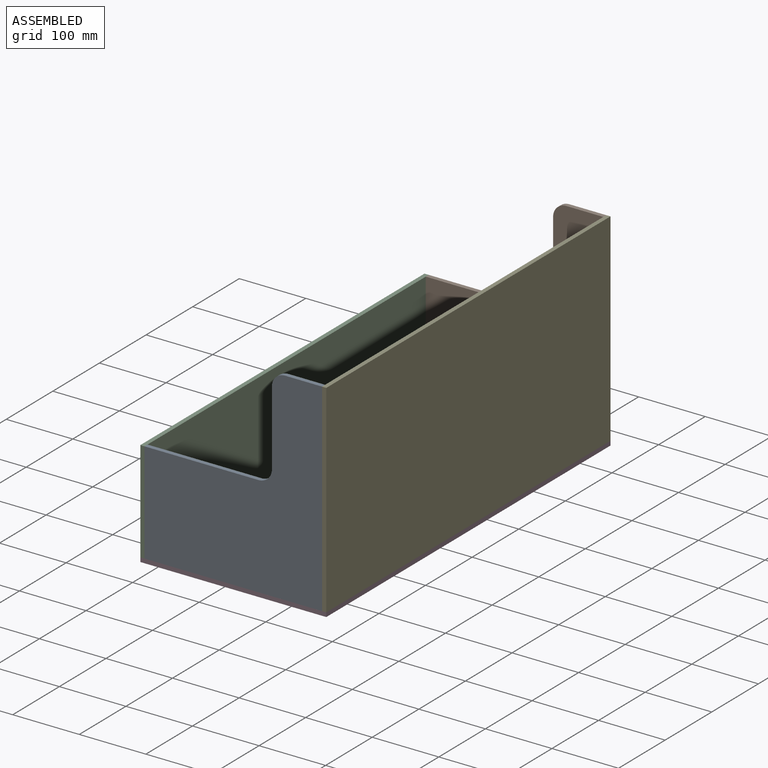
[diagram: assembled view]
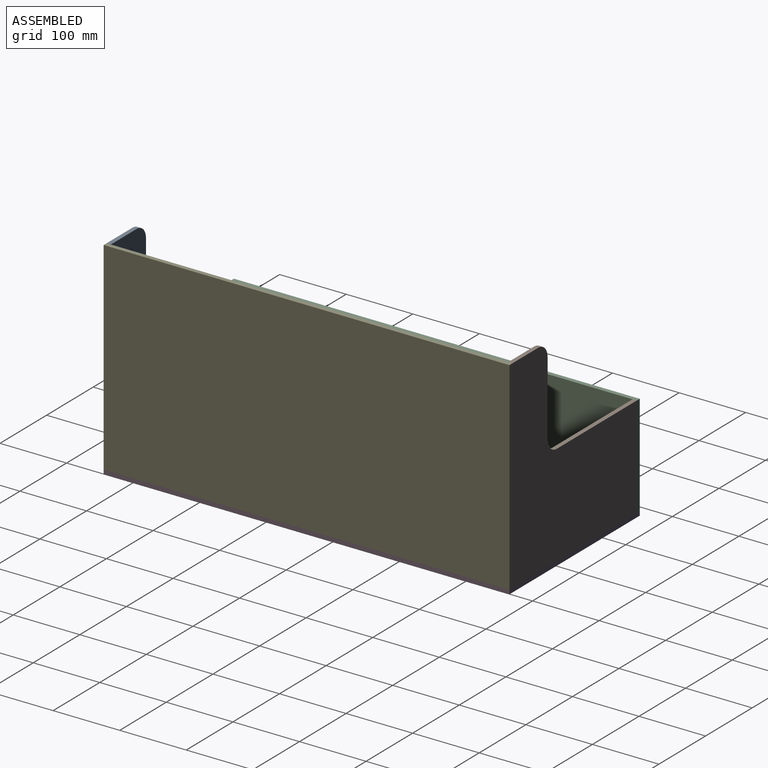
[diagram: assembled view, second angle]
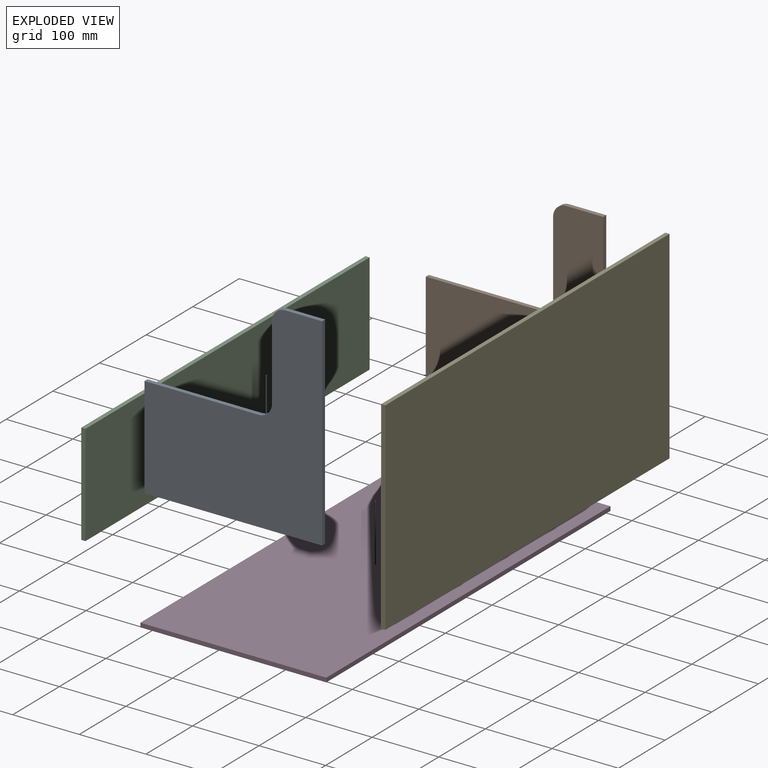
[diagram: exploded view]
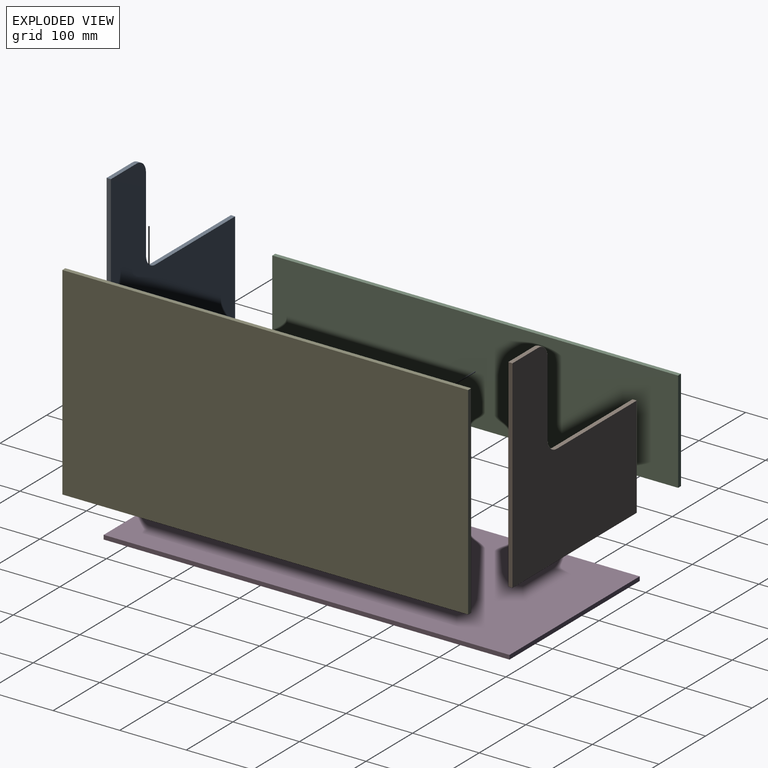
[diagram: exploded view, second angle]
ASSEMBLY  parts=5 mates=12
PART A: 10 faces, bbox 266.7x6.4x304.8 mm
  f0: plane 55.36x6.35mm, normal (0,0,1), area 351.5mm2, adj f1,f7,f8,f9
  f1: cylinder r=20mm len=20mm, axis (0,1,0), area 199.5mm2, adj f0,f2,f8,f9
  f2: plane 112.4x6.35mm, normal (-1,0,0), area 713.7mm2, adj f1,f3,f8,f9
  f3: cylinder r=20mm len=20mm, axis (0,1,0), area 199.5mm2, adj f2,f4,f8,f9
  f4: plane 171.34x6.35mm, normal (0,0,1), area 1088mm2, adj f3,f5,f8,f9
  f5: plane 152.4x6.35mm, normal (-1,0,0), area 967.7mm2, adj f4,f6,f8,f9
  f6: plane 266.7x6.35mm, normal (0,0,-1), area 1693.5mm2, adj f5,f7,f8,f9
  f7: plane 304.8x6.35mm, normal (1,0,0), area 1935.5mm2, adj f0,f6,f8,f9
  f8: plane 304.8x266.7mm, normal (0,-1,0), area 52129.5mm2, adj f0,f1,f2,f3,f4,f5,f6,f7
  f9: plane 304.8x266.7mm, normal (0,1,0), area 52129.5mm2, adj f0,f1,f2,f3,f4,f5,f6,f7
PART B: same geometry as A
PART C: 6 faces, bbox 152.4x6.4x609.6 mm
  f0: plane 152.4x6.35mm, normal (0,0,1), area 967.7mm2, adj f1,f3,f4,f5
  f1: plane 609.6x6.35mm, normal (-1,0,0), area 3871mm2, adj f0,f2,f4,f5
  f2: plane 152.4x6.35mm, normal (0,0,-1), area 967.7mm2, adj f1,f3,f4,f5
  f3: plane 609.6x6.35mm, normal (1,0,0), area 3871mm2, adj f0,f2,f4,f5
  f4: plane 609.6x152.4mm, normal (0,-1,0), area 92903mm2, adj f0,f1,f2,f3
  f5: plane 609.6x152.4mm, normal (0,1,0), area 92903mm2, adj f0,f1,f2,f3
PART D: 6 faces, bbox 279.4x6.4x609.6 mm
  f0: plane 609.6x6.35mm, normal (1,0,0), area 3871mm2, adj f1,f3,f4,f5
  f1: plane 279.4x6.35mm, normal (0,0,1), area 1774.2mm2, adj f0,f2,f4,f5
  f2: plane 609.6x6.35mm, normal (-1,0,0), area 3871mm2, adj f1,f3,f4,f5
  f3: plane 279.4x6.35mm, normal (0,0,-1), area 1774.2mm2, adj f0,f2,f4,f5
  f4: plane 609.6x279.4mm, normal (0,-1,0), area 170322.2mm2, adj f0,f1,f2,f3
  f5: plane 609.6x279.4mm, normal (0,1,0), area 170322.2mm2, adj f0,f1,f2,f3
PART E: 6 faces, bbox 304.8x6.4x609.6 mm
  f0: plane 304.8x6.35mm, normal (0,0,1), area 1935.5mm2, adj f1,f3,f4,f5
  f1: plane 609.6x6.35mm, normal (-1,0,0), area 3871mm2, adj f0,f2,f4,f5
  f2: plane 304.8x6.35mm, normal (0,0,-1), area 1935.5mm2, adj f1,f3,f4,f5
  f3: plane 609.6x6.35mm, normal (1,0,0), area 3871mm2, adj f0,f2,f4,f5
  f4: plane 609.6x304.8mm, normal (0,-1,0), area 185806.1mm2, adj f0,f1,f2,f3
  f5: plane 609.6x304.8mm, normal (0,1,0), area 185806.1mm2, adj f0,f1,f2,f3
PLACE A rot(axis=(-0.02,-1,-0.03),0deg) t=(-130.57,-814.71,-130.15)mm
PLACE B rot(axis=(-0.02,-1,-0.03),0deg) t=(-130.57,-211.46,-130.15)mm
PLACE C rot(axis=(0.58,0.58,-0.58),120deg) t=(-397.27,-873.67,-455.55)mm
PLACE D rot(axis=(-1,0,0),90deg) t=(-124.22,-158.85,-136.5)mm
PLACE E rot(axis=(0.58,-0.58,0.58),120deg) t=(-130.57,-873.67,-183.28)mm
MATE planar A.f7 <-> E.f5  axis (1,0,0) through (-130.57,-817.88,22.25)mm
MATE planar D.f1 <-> B.f9  axis (0,1,0) through (-263.92,-211.46,-133.32)mm
MATE planar A.f6 <-> D.f4  axis (0,0,-1) through (-263.92,-817.88,-130.15)mm
MATE planar B.f7 <-> E.f5  axis (1,0,0) through (-130.57,-214.63,22.25)mm
MATE planar B.f6 <-> D.f4  axis (0,0,-1) through (-263.92,-214.63,-130.15)mm
MATE planar C.f4 <-> D.f2  axis (-1,0,0) through (-403.62,-516.26,-53.95)mm
MATE planar E.f4 <-> D.f0  axis (1,0,0) through (-124.22,-516.26,22.25)mm
MATE planar E.f2 <-> D.f1  axis (0,1,0) through (-127.4,-211.46,22.25)mm
MATE planar E.f1 <-> D.f4  axis (0,0,-1) through (-127.4,-516.26,-130.15)mm
MATE planar C.f3 <-> D.f4  axis (0,0,-1) through (-400.45,-516.26,-130.15)mm
MATE planar D.f3 <-> A.f8  axis (0,-1,0) through (-263.92,-821.06,-133.32)mm
MATE planar C.f0 <-> D.f3  axis (0,-1,0) through (-400.45,-821.06,-53.95)mm
